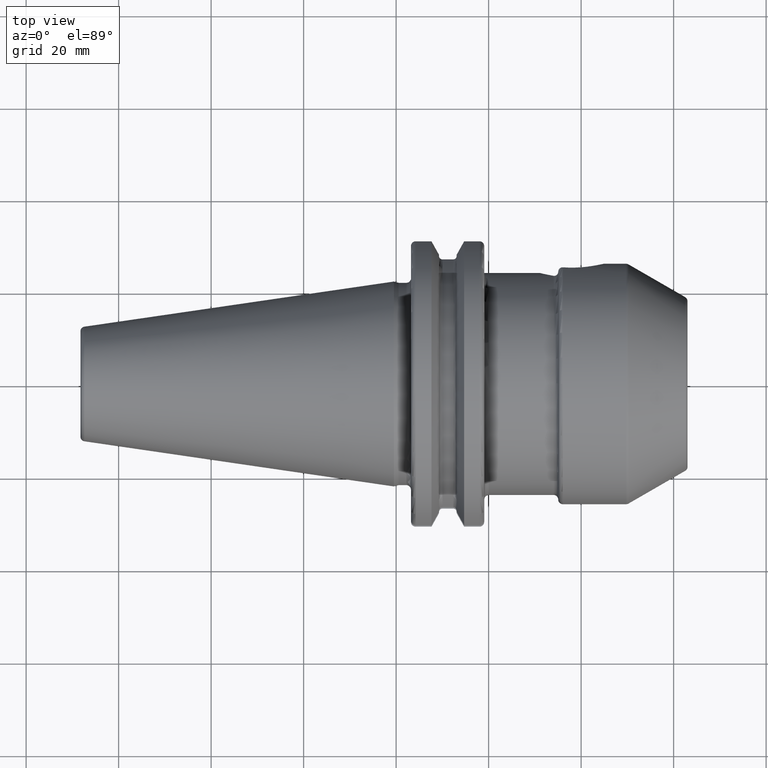
[diagram: clean part render]
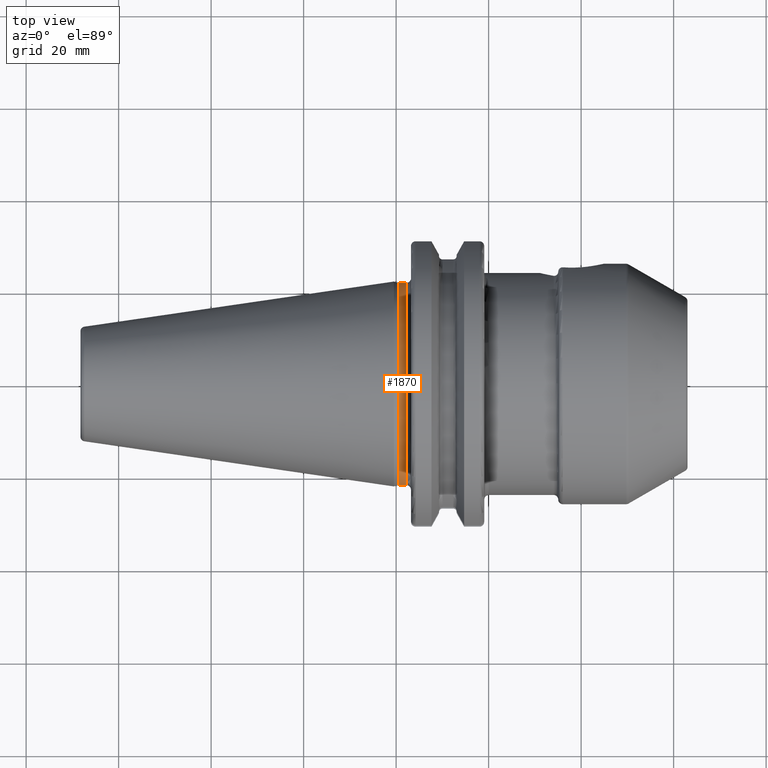
[diagram: same view with one face highlighted and labeled with its STEP entity id]
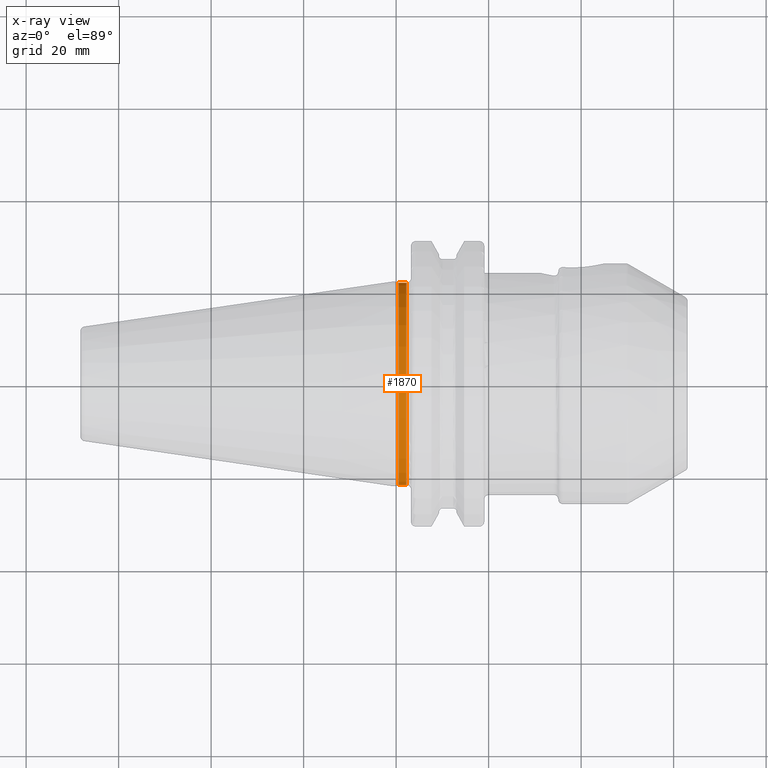
[diagram: x-ray of the same camera — body ghosted, the highlighted face saturated]
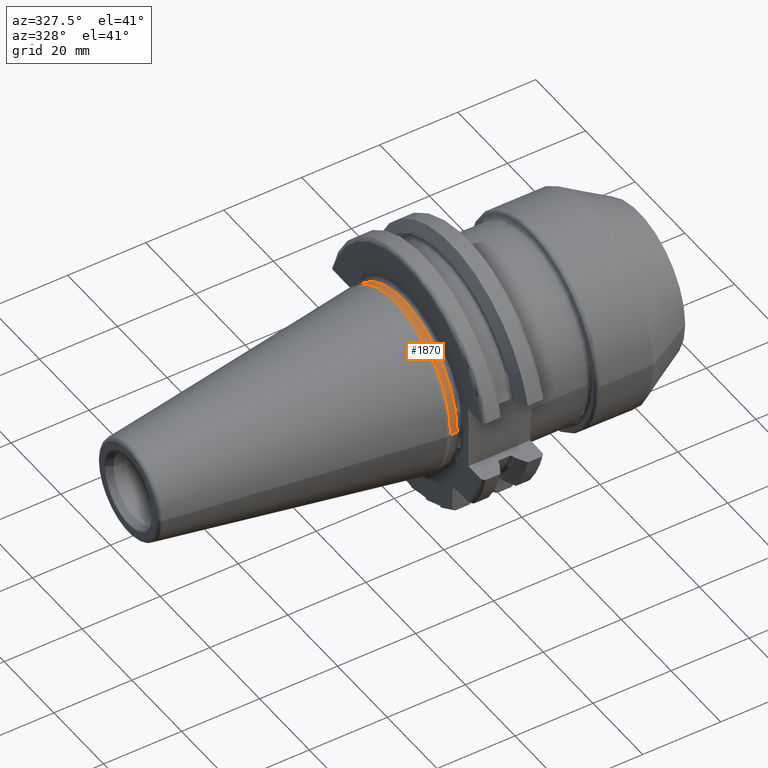
[diagram: same view with one face highlighted and labeled with its STEP entity id]
A machine part, top view. The second image highlights one B-rep face of the part: STEP entity #1870.
The next image is the same camera in x-ray: the body ghosted, the highlighted face saturated — about 0% of this face is hidden behind the body in this view.
A second angle (auxiliary view) of the same face is appended — the face is thin or edge-on in the first view.
In plain terms, the highlighted cylindrical surface (partial cylindrical patch) has radius 21.875 mm, axis along (1, 0, 0).
Its self-contained STEP definition (entity closure, byte-faithful):
#73=CARTESIAN_POINT('',(5.5E-1,0.E0,0.E0));
#74=DIRECTION('',(1.E0,0.E0,0.E0));
#75=DIRECTION('',(0.E0,1.E0,0.E0));
#76=AXIS2_PLACEMENT_3D('',#73,#74,#75);
#78=CARTESIAN_POINT('',(2.2E0,0.E0,0.E0));
#79=DIRECTION('',(1.E0,0.E0,0.E0));
#80=DIRECTION('',(0.E0,1.E0,0.E0));
#81=AXIS2_PLACEMENT_3D('',#78,#79,#80);
#83=DIRECTION('',(-1.E0,0.E0,0.E0));
#84=VECTOR('',#83,1.65E0);
#85=CARTESIAN_POINT('',(2.2E0,2.1875E1,0.E0));
#86=LINE('',#85,#84);
#87=DIRECTION('',(-1.E0,0.E0,0.E0));
#88=VECTOR('',#87,1.65E0);
#89=CARTESIAN_POINT('',(2.2E0,-2.1875E1,0.E0));
#90=LINE('',#89,#88);
#1479=CARTESIAN_POINT('',(2.2E0,2.1875E1,0.E0));
#1480=CARTESIAN_POINT('',(5.5E-1,2.1875E1,0.E0));
#1481=VERTEX_POINT('',#1479);
#1482=VERTEX_POINT('',#1480);
#1484=CARTESIAN_POINT('',(2.2E0,-2.1875E1,0.E0));
#1486=VERTEX_POINT('',#1484);
#1487=CARTESIAN_POINT('',(5.5E-1,-2.1875E1,0.E0));
#1488=VERTEX_POINT('',#1487);
#1856=CARTESIAN_POINT('',(-7.2615E1,0.E0,0.E0));
#1857=DIRECTION('',(1.E0,0.E0,0.E0));
#1858=DIRECTION('',(0.E0,-1.E0,0.E0));
#1859=AXIS2_PLACEMENT_3D('',#1856,#1857,#1858);
#1860=CYLINDRICAL_SURFACE('',#1859,2.1875E1);
#1862=ORIENTED_EDGE('',*,*,#1861,.F.);
#1864=ORIENTED_EDGE('',*,*,#1863,.T.);
#1866=ORIENTED_EDGE('',*,*,#1865,.T.);
#1867=ORIENTED_EDGE('',*,*,#1849,.F.);
#1868=EDGE_LOOP('',(#1862,#1864,#1866,#1867));
#1869=FACE_OUTER_BOUND('',#1868,.F.);
#1870=ADVANCED_FACE('',(#1869),#1860,.T.);
#77=CIRCLE('',#76,2.1875E1);
#82=CIRCLE('',#81,2.1875E1);
#1849=EDGE_CURVE('',#1482,#1488,#77,.T.);
#1861=EDGE_CURVE('',#1481,#1482,#86,.T.);
#1863=EDGE_CURVE('',#1481,#1486,#82,.T.);
#1865=EDGE_CURVE('',#1486,#1488,#90,.T.);